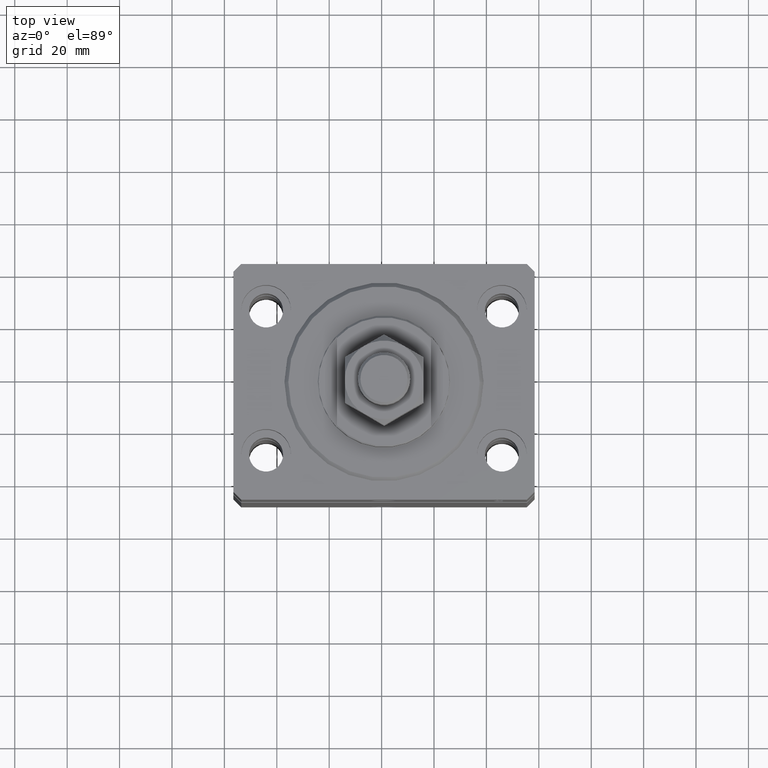
[diagram: clean part render]
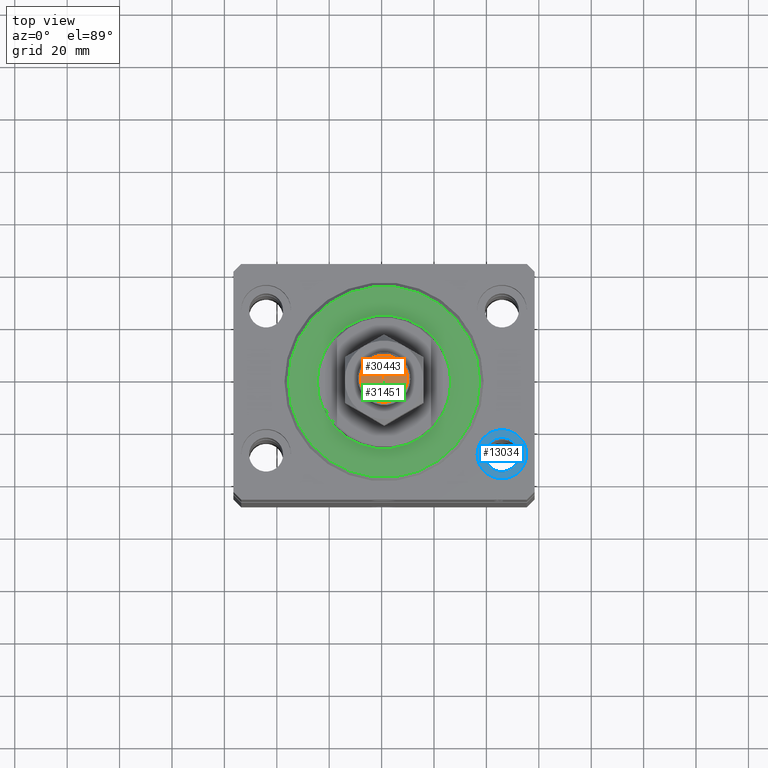
[diagram: same view with three faces highlighted in distinct colors, each labeled with its STEP entity id]
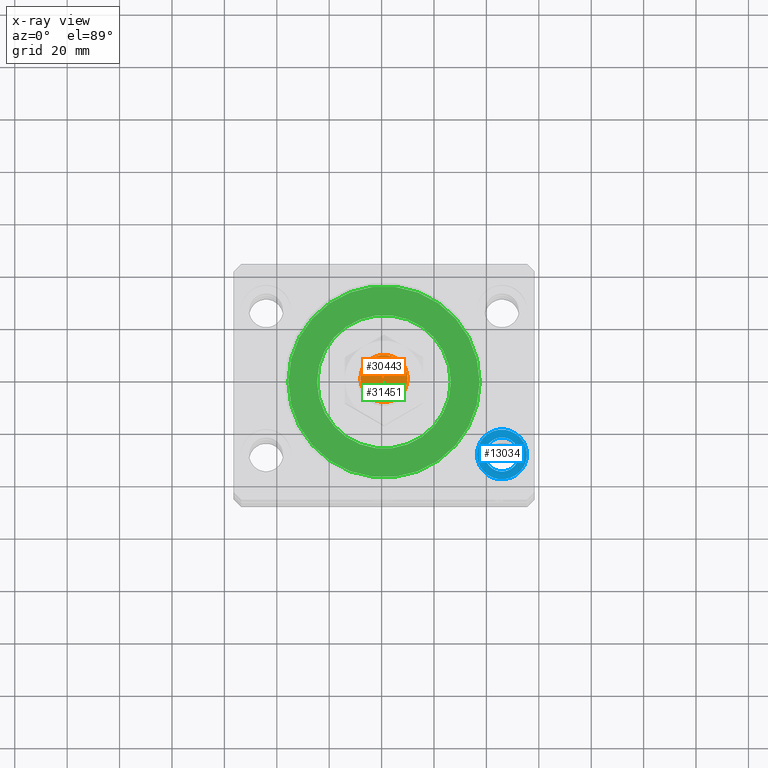
[diagram: x-ray of the same camera — body ghosted, the three highlighted faces saturated]
A machine part, top view with three faces highlighted in distinct colors.
The next image is the same camera in x-ray (body ghosted, the three faces saturated) — at least one of them is partly hidden behind the body in this view.
Their STEP definitions:

[orange] entity #30443 — the highlighted planar face has unit normal (0, 0, 1).
#5147 = DIRECTION ( 'NONE',  ( 1.000000000000000000, 0.000000000000000000, 0.000000000000000000 ) ) ;
#5616 = DIRECTION ( 'NONE',  ( 0.000000000000000000, 0.000000000000000000, 1.000000000000000000 ) ) ;
#6200 = CARTESIAN_POINT ( 'NONE',  ( 0.000000000000000000, 0.000000000000000000, 53.00000000000000711 ) ) ;
#6871 = EDGE_LOOP ( 'NONE', ( #33204, #39210 ) ) ;
#13170 = CARTESIAN_POINT ( 'NONE',  ( 0.000000000000000000, 0.000000000000000000, 53.00000000000000711 ) ) ;
#17473 = CARTESIAN_POINT ( 'NONE',  ( -9.000000000000047962, 0.000000000000000000, 53.00000000000000711 ) ) ;
#24462 = FACE_OUTER_BOUND ( 'NONE', #6871, .T. ) ;
#27883 = CARTESIAN_POINT ( 'NONE',  ( 9.000000000000047962, 1.163414459189988443E-15, 53.00000000000000711 ) ) ;
#30443 = ADVANCED_FACE ( 'NONE', ( #24462 ), #39109, .T. ) ;
#32677 = CIRCLE ( 'NONE', #38827, 9.000000000000047962 ) ;
#33204 = ORIENTED_EDGE ( 'NONE', *, *, #45233, .T. ) ;
#34199 = CARTESIAN_POINT ( 'NONE',  ( 0.000000000000000000, 0.000000000000000000, 53.00000000000000711 ) ) ;
#34759 = DIRECTION ( 'NONE',  ( 1.000000000000000000, 0.000000000000000000, 0.000000000000000000 ) ) ;
#36552 = EDGE_CURVE ( 'NONE', #41163, #46262, #43156, .T. ) ;
#37004 = AXIS2_PLACEMENT_3D ( 'NONE', #13170, #45824, #34759 ) ;
#38827 = AXIS2_PLACEMENT_3D ( 'NONE', #34199, #5616, #5147 ) ;
#39109 = PLANE ( 'NONE',  #44387 ) ;
#39210 = ORIENTED_EDGE ( 'NONE', *, *, #36552, .T. ) ;
#39342 = DIRECTION ( 'NONE',  ( 1.000000000000000000, 0.000000000000000000, -0.000000000000000000 ) ) ;
#41163 = VERTEX_POINT ( 'NONE', #27883 ) ;
#42946 = DIRECTION ( 'NONE',  ( 0.000000000000000000, 0.000000000000000000, 1.000000000000000000 ) ) ;
#43156 = CIRCLE ( 'NONE', #37004, 9.000000000000047962 ) ;
#44387 = AXIS2_PLACEMENT_3D ( 'NONE', #6200, #42946, #39342 ) ;
#45233 = EDGE_CURVE ( 'NONE', #46262, #41163, #32677, .T. ) ;
#45824 = DIRECTION ( 'NONE',  ( 0.000000000000000000, 0.000000000000000000, 1.000000000000000000 ) ) ;
#46262 = VERTEX_POINT ( 'NONE', #17473 ) ;

[blue] entity #13034 — the highlighted planar face has unit normal (0, 0, 1).
#397 = ORIENTED_EDGE ( 'NONE', *, *, #36387, .F. ) ;
#651 = ORIENTED_EDGE ( 'NONE', *, *, #37965, .T. ) ;
#1127 = DIRECTION ( 'NONE',  ( 0.000000000000000000, 0.000000000000000000, 1.000000000000000000 ) ) ;
#1886 = AXIS2_PLACEMENT_3D ( 'NONE', #44349, #19132, #4934 ) ;
#4934 = DIRECTION ( 'NONE',  ( 1.000000000000000000, 0.000000000000000000, -0.000000000000000000 ) ) ;
#5730 = CIRCLE ( 'NONE', #31033, 9.500000000000001776 ) ;
#5821 = ORIENTED_EDGE ( 'NONE', *, *, #20683, .F. ) ;
#7597 = PLANE ( 'NONE',  #1886 ) ;
#7898 = DIRECTION ( 'NONE',  ( 1.000000000000000000, 0.000000000000000000, 0.000000000000000000 ) ) ;
#8109 = CARTESIAN_POINT ( 'NONE',  ( 45.00000000000000000, -27.49999999999999645, -13.00000000000000000 ) ) ;
#8288 = VERTEX_POINT ( 'NONE', #38191 ) ;
#8595 = CARTESIAN_POINT ( 'NONE',  ( 45.00000000000000000, -27.49999999999999645, -13.00000000000000000 ) ) ;
#9092 = DIRECTION ( 'NONE',  ( 1.000000000000000000, 0.000000000000000000, 0.000000000000000000 ) ) ;
#10186 = CIRCLE ( 'NONE', #34699, 6.499999999999999112 ) ;
#11728 = VERTEX_POINT ( 'NONE', #16479 ) ;
#12456 = CARTESIAN_POINT ( 'NONE',  ( 45.00000000000000000, -27.49999999999999645, -13.00000000000000000 ) ) ;
#13034 = ADVANCED_FACE ( 'NONE', ( #34226, #22485 ), #7597, .T. ) ;
#14857 = DIRECTION ( 'NONE',  ( 0.000000000000000000, 0.000000000000000000, 1.000000000000000000 ) ) ;
#15471 = ORIENTED_EDGE ( 'NONE', *, *, #41188, .T. ) ;
#15602 = CARTESIAN_POINT ( 'NONE',  ( 45.00000000000000000, -27.49999999999999645, -13.00000000000000000 ) ) ;
#16479 = CARTESIAN_POINT ( 'NONE',  ( 38.50000000000000000, -27.49999999999999645, -13.00000000000000000 ) ) ;
#18923 = AXIS2_PLACEMENT_3D ( 'NONE', #8595, #14857, #29974 ) ;
#19132 = DIRECTION ( 'NONE',  ( 0.000000000000000000, 0.000000000000000000, 1.000000000000000000 ) ) ;
#19424 = CARTESIAN_POINT ( 'NONE',  ( 35.50000000000000000, -27.49999999999999645, -13.00000000000000000 ) ) ;
#20683 = EDGE_CURVE ( 'NONE', #11728, #8288, #25059, .T. ) ;
#21332 = EDGE_LOOP ( 'NONE', ( #397, #5821 ) ) ;
#22049 = EDGE_LOOP ( 'NONE', ( #15471, #651 ) ) ;
#22485 = FACE_OUTER_BOUND ( 'NONE', #22049, .T. ) ;
#25020 = AXIS2_PLACEMENT_3D ( 'NONE', #8109, #1127, #41258 ) ;
#25059 = CIRCLE ( 'NONE', #18923, 6.499999999999999112 ) ;
#29974 = DIRECTION ( 'NONE',  ( 1.000000000000000000, 0.000000000000000000, 0.000000000000000000 ) ) ;
#31033 = AXIS2_PLACEMENT_3D ( 'NONE', #12456, #31164, #9092 ) ;
#31164 = DIRECTION ( 'NONE',  ( 0.000000000000000000, 0.000000000000000000, 1.000000000000000000 ) ) ;
#34226 = FACE_BOUND ( 'NONE', #21332, .T. ) ;
#34699 = AXIS2_PLACEMENT_3D ( 'NONE', #15602, #41288, #7898 ) ;
#36387 = EDGE_CURVE ( 'NONE', #8288, #11728, #10186, .T. ) ;
#37281 = CIRCLE ( 'NONE', #25020, 9.500000000000001776 ) ;
#37918 = VERTEX_POINT ( 'NONE', #19424 ) ;
#37965 = EDGE_CURVE ( 'NONE', #37918, #43879, #5730, .T. ) ;
#38191 = CARTESIAN_POINT ( 'NONE',  ( 51.50000000000000000, -27.49999999999999645, -13.00000000000000000 ) ) ;
#38923 = CARTESIAN_POINT ( 'NONE',  ( 54.50000000000000000, -27.49999999999999645, -13.00000000000000000 ) ) ;
#41188 = EDGE_CURVE ( 'NONE', #43879, #37918, #37281, .T. ) ;
#41258 = DIRECTION ( 'NONE',  ( 1.000000000000000000, 0.000000000000000000, 0.000000000000000000 ) ) ;
#41288 = DIRECTION ( 'NONE',  ( 0.000000000000000000, 0.000000000000000000, 1.000000000000000000 ) ) ;
#43879 = VERTEX_POINT ( 'NONE', #38923 ) ;
#44349 = CARTESIAN_POINT ( 'NONE',  ( 45.00000000000000000, -27.49999999999999645, -13.00000000000000000 ) ) ;

[green] entity #31451 — the highlighted planar face has unit normal (0, 0, -1).
#738 = DIRECTION ( 'NONE',  ( 1.000000000000000000, 0.000000000000000000, 0.000000000000000000 ) ) ;
#4392 = ORIENTED_EDGE ( 'NONE', *, *, #8317, .T. ) ;
#5452 = DIRECTION ( 'NONE',  ( 0.000000000000000000, 0.000000000000000000, 1.000000000000000000 ) ) ;
#5879 = CARTESIAN_POINT ( 'NONE',  ( -25.50000000000000355, 3.122849337825751011E-15, 2.168404344971008868E-16 ) ) ;
#6915 = CARTESIAN_POINT ( 'NONE',  ( 36.50000000000000000, 0.000000000000000000, 0.000000000000000000 ) ) ;
#7140 = VERTEX_POINT ( 'NONE', #10138 ) ;
#7285 = CIRCLE ( 'NONE', #42562, 36.50000000000000000 ) ;
#7710 = EDGE_CURVE ( 'NONE', #35680, #7140, #12654, .T. ) ;
#8317 = EDGE_CURVE ( 'NONE', #44062, #19802, #20183, .T. ) ;
#9078 = CARTESIAN_POINT ( 'NONE',  ( 0.000000000000000000, 0.000000000000000000, 0.000000000000000000 ) ) ;
#9185 = EDGE_CURVE ( 'NONE', #7140, #35680, #24822, .T. ) ;
#10061 = ORIENTED_EDGE ( 'NONE', *, *, #7710, .T. ) ;
#10138 = CARTESIAN_POINT ( 'NONE',  ( 25.50000000000000355, 0.000000000000000000, 2.168404344971008868E-16 ) ) ;
#11561 = CARTESIAN_POINT ( 'NONE',  ( 0.000000000000000000, 0.000000000000000000, 0.000000000000000000 ) ) ;
#12655 = EDGE_CURVE ( 'NONE', #19802, #44062, #7285, .T. ) ;
#12654 = CIRCLE ( 'NONE', #13406, 25.50000000000000355 ) ;
#13299 = AXIS2_PLACEMENT_3D ( 'NONE', #33868, #43793, #738 ) ;
#13406 = AXIS2_PLACEMENT_3D ( 'NONE', #9078, #5452, #41973 ) ;
#19328 = CARTESIAN_POINT ( 'NONE',  ( 0.000000000000000000, 0.000000000000000000, 0.000000000000000000 ) ) ;
#19781 = CARTESIAN_POINT ( 'NONE',  ( 0.000000000000000000, 0.000000000000000000, 0.000000000000000000 ) ) ;
#19802 = VERTEX_POINT ( 'NONE', #6915 ) ;
#20183 = CIRCLE ( 'NONE', #13299, 36.50000000000000000 ) ;
#24822 = CIRCLE ( 'NONE', #37837, 25.50000000000000355 ) ;
#25439 = EDGE_LOOP ( 'NONE', ( #45027, #10061 ) ) ;
#26206 = DIRECTION ( 'NONE',  ( -0.000000000000000000, -0.000000000000000000, -1.000000000000000000 ) ) ;
#29836 = AXIS2_PLACEMENT_3D ( 'NONE', #19328, #41191, #40947 ) ;
#31043 = DIRECTION ( 'NONE',  ( 0.000000000000000000, 0.000000000000000000, 1.000000000000000000 ) ) ;
#31451 = ADVANCED_FACE ( 'NONE', ( #43828, #40234 ), #41892, .F. ) ;
#33868 = CARTESIAN_POINT ( 'NONE',  ( 0.000000000000000000, 0.000000000000000000, 0.000000000000000000 ) ) ;
#35680 = VERTEX_POINT ( 'NONE', #5879 ) ;
#37837 = AXIS2_PLACEMENT_3D ( 'NONE', #19781, #31043, #38725 ) ;
#38725 = DIRECTION ( 'NONE',  ( 1.000000000000000000, 0.000000000000000000, 0.000000000000000000 ) ) ;
#40234 = FACE_OUTER_BOUND ( 'NONE', #43824, .T. ) ;
#40854 = DIRECTION ( 'NONE',  ( 1.000000000000000000, 0.000000000000000000, 0.000000000000000000 ) ) ;
#40947 = DIRECTION ( 'NONE',  ( 1.000000000000000000, 0.000000000000000000, -0.000000000000000000 ) ) ;
#41191 = DIRECTION ( 'NONE',  ( 0.000000000000000000, 0.000000000000000000, 1.000000000000000000 ) ) ;
#41892 = PLANE ( 'NONE',  #29836 ) ;
#41973 = DIRECTION ( 'NONE',  ( 1.000000000000000000, 0.000000000000000000, 0.000000000000000000 ) ) ;
#42355 = ORIENTED_EDGE ( 'NONE', *, *, #12655, .T. ) ;
#42562 = AXIS2_PLACEMENT_3D ( 'NONE', #11561, #26206, #40854 ) ;
#43793 = DIRECTION ( 'NONE',  ( -0.000000000000000000, -0.000000000000000000, -1.000000000000000000 ) ) ;
#43824 = EDGE_LOOP ( 'NONE', ( #42355, #4392 ) ) ;
#43828 = FACE_BOUND ( 'NONE', #25439, .T. ) ;
#44062 = VERTEX_POINT ( 'NONE', #46010 ) ;
#45027 = ORIENTED_EDGE ( 'NONE', *, *, #9185, .T. ) ;
#46010 = CARTESIAN_POINT ( 'NONE',  ( -36.50000000000000000, 4.561809326823889791E-15, 0.000000000000000000 ) ) ;